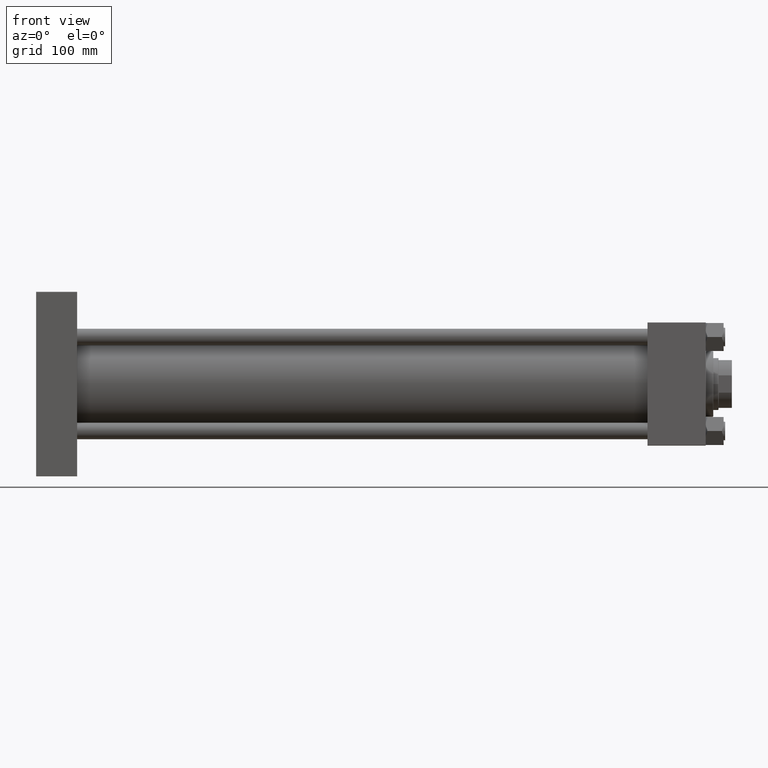
[diagram: clean part render]
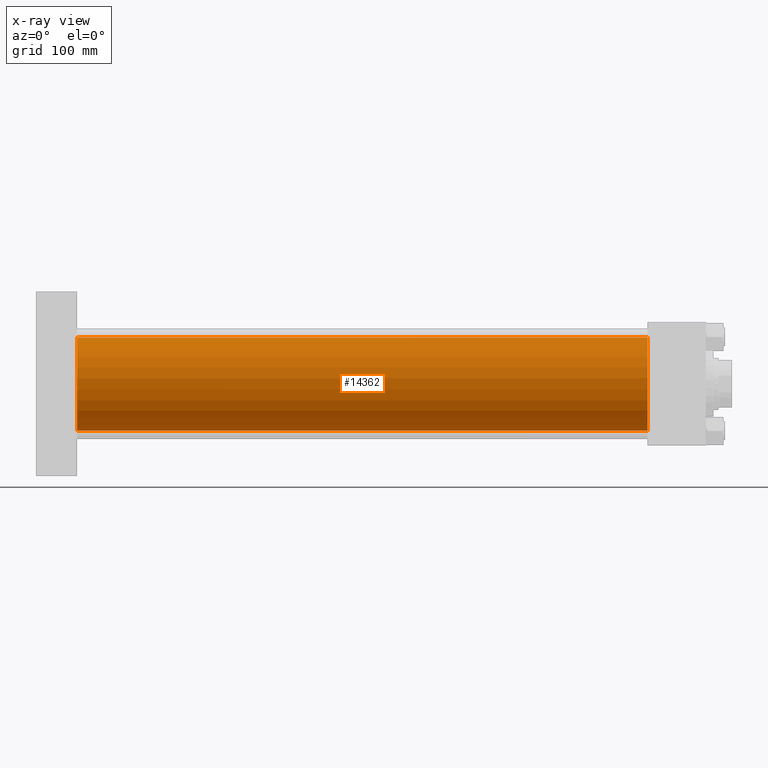
[diagram: x-ray — body ghosted, one internal face saturated and labeled with its STEP entity id]
A machine part, front view, then the same camera in x-ray: the body is ghosted and one INTERNAL B-rep face — a face not visible from any outside direction — is saturated and labeled: STEP entity #14362.
In plain terms, the highlighted cylindrical surface (partial cylindrical patch) has radius 62.5 mm, axis along (-1, -0, -0).
Its self-contained STEP definition (entity closure, byte-faithful):
#1580 = DIRECTION ( 'NONE',  ( 0.000000000000000000, 0.000000000000000000, -1.000000000000000000 ) ) ;
#3097 = CIRCLE ( 'NONE', #44762, 62.50000000000000000 ) ;
#6120 = DIRECTION ( 'NONE',  ( 1.000000000000000000, 0.000000000000000000, 0.000000000000000000 ) ) ;
#6154 = CARTESIAN_POINT ( 'NONE',  ( 55.00000000000000000, -2.602085213965210642E-15, 62.50000000000000000 ) ) ;
#6634 = FACE_OUTER_BOUND ( 'NONE', #22639, .T. ) ;
#8025 = VECTOR ( 'NONE', #13300, 1000.000000000000000 ) ;
#9045 = CARTESIAN_POINT ( 'NONE',  ( 55.00000000000000000, 5.051957280705747162E-15, -62.50000000000000000 ) ) ;
#11402 = CIRCLE ( 'NONE', #41118, 62.50000000000000000 ) ;
#11827 = EDGE_CURVE ( 'NONE', #47772, #23241, #13575, .T. ) ;
#13300 = DIRECTION ( 'NONE',  ( -1.000000000000000000, -0.000000000000000000, -0.000000000000000000 ) ) ;
#13575 = LINE ( 'NONE', #36989, #8025 ) ;
#13607 = CARTESIAN_POINT ( 'NONE',  ( 819.0000000000001137, -2.602085213965210642E-15, 62.50000000000000000 ) ) ;
#14316 = CARTESIAN_POINT ( 'NONE',  ( 55.00000000000000000, -2.602085213965210642E-15, 0.000000000000000000 ) ) ;
#14362 = ADVANCED_FACE ( 'NONE', ( #6634 ), #34043, .F. ) ;
#15632 = EDGE_CURVE ( 'NONE', #40366, #23241, #11402, .T. ) ;
#15872 = LINE ( 'NONE', #28887, #37780 ) ;
#17554 = CARTESIAN_POINT ( 'NONE',  ( 819.0000000000001137, -2.602085213965210642E-15, 0.000000000000000000 ) ) ;
#20380 = DIRECTION ( 'NONE',  ( -1.000000000000000000, -0.000000000000000000, -0.000000000000000000 ) ) ;
#21804 = DIRECTION ( 'NONE',  ( -1.000000000000000000, -0.000000000000000000, -0.000000000000000000 ) ) ;
#22639 = EDGE_LOOP ( 'NONE', ( #34520, #29866, #39586, #38074 ) ) ;
#23241 = VERTEX_POINT ( 'NONE', #9045 ) ;
#26300 = DIRECTION ( 'NONE',  ( 0.000000000000000000, 0.000000000000000000, -1.000000000000000000 ) ) ;
#26583 = DIRECTION ( 'NONE',  ( 0.000000000000000000, 0.000000000000000000, 1.000000000000000000 ) ) ;
#28887 = CARTESIAN_POINT ( 'NONE',  ( 819.0000000000001137, -2.602085213965210642E-15, 62.50000000000000000 ) ) ;
#29866 = ORIENTED_EDGE ( 'NONE', *, *, #11827, .T. ) ;
#34043 = CYLINDRICAL_SURFACE ( 'NONE', #41919, 62.50000000000000000 ) ;
#34055 = CARTESIAN_POINT ( 'NONE',  ( 819.0000000000001137, -2.602085213965210642E-15, 0.000000000000000000 ) ) ;
#34520 = ORIENTED_EDGE ( 'NONE', *, *, #43586, .T. ) ;
#35981 = EDGE_CURVE ( 'NONE', #45887, #40366, #15872, .T. ) ;
#36989 = CARTESIAN_POINT ( 'NONE',  ( 819.0000000000001137, 5.051957280705747162E-15, -62.50000000000000000 ) ) ;
#37780 = VECTOR ( 'NONE', #20380, 1000.000000000000000 ) ;
#38074 = ORIENTED_EDGE ( 'NONE', *, *, #35981, .F. ) ;
#39586 = ORIENTED_EDGE ( 'NONE', *, *, #15632, .F. ) ;
#40366 = VERTEX_POINT ( 'NONE', #6154 ) ;
#41118 = AXIS2_PLACEMENT_3D ( 'NONE', #14316, #46773, #26300 ) ;
#41919 = AXIS2_PLACEMENT_3D ( 'NONE', #17554, #21804, #26583 ) ;
#42252 = CARTESIAN_POINT ( 'NONE',  ( 819.0000000000001137, 5.051957280705747162E-15, -62.50000000000000000 ) ) ;
#43586 = EDGE_CURVE ( 'NONE', #45887, #47772, #3097, .T. ) ;
#44762 = AXIS2_PLACEMENT_3D ( 'NONE', #34055, #6120, #1580 ) ;
#45887 = VERTEX_POINT ( 'NONE', #13607 ) ;
#46773 = DIRECTION ( 'NONE',  ( 1.000000000000000000, 0.000000000000000000, 0.000000000000000000 ) ) ;
#47772 = VERTEX_POINT ( 'NONE', #42252 ) ;